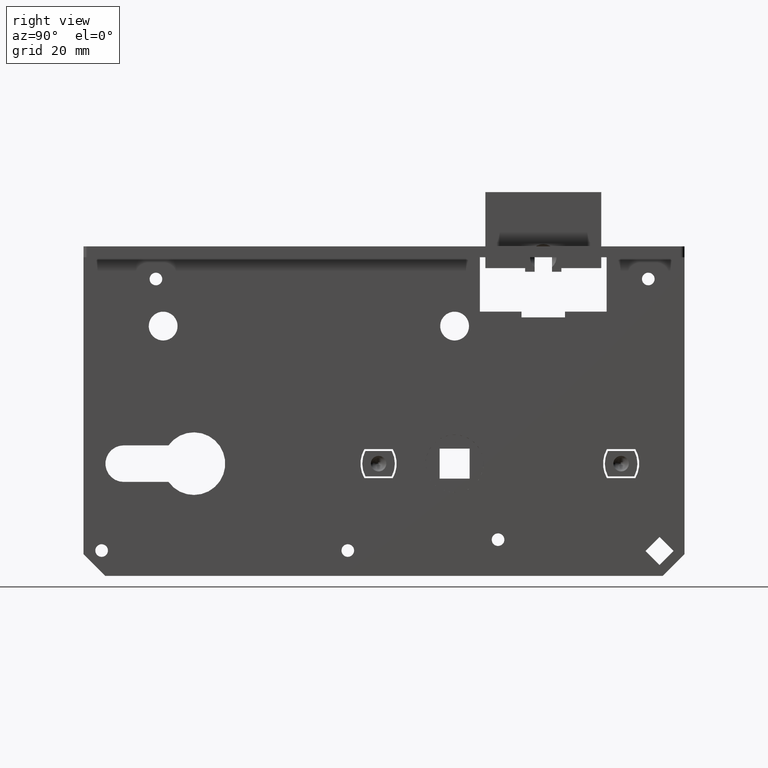
[diagram: clean part render]
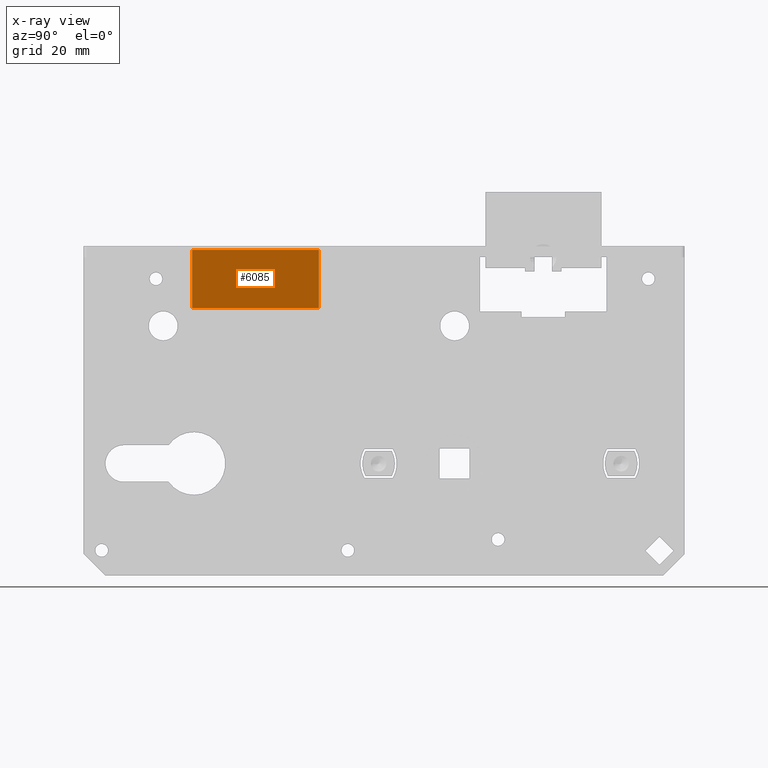
[diagram: x-ray — body ghosted, one internal face saturated and labeled with its STEP entity id]
A machine part, right view, then the same camera in x-ray: the body is ghosted and one INTERNAL B-rep face — a face not visible from any outside direction — is saturated and labeled: STEP entity #6085.
In plain terms, the highlighted planar face has unit normal (-1, -0, 0).
Its self-contained STEP definition (entity closure, byte-faithful):
#580 = CARTESIAN_POINT ( 'NONE',  ( 4.074999999999999289, 17.50000000000000000, 7.500000000000000888 ) ) ;
#1476 = CARTESIAN_POINT ( 'NONE',  ( 4.074999999999999289, 17.50000000000000000, 7.500000000000000888 ) ) ;
#1630 = CARTESIAN_POINT ( 'NONE',  ( 4.074999999999999289, 17.50000000000000000, -8.500000000000000000 ) ) ;
#2378 = LINE ( 'NONE', #1630, #13865 ) ;
#3158 = CARTESIAN_POINT ( 'NONE',  ( 4.074999999999999289, 17.50000000000000000, 8.500000000000000000 ) ) ;
#3161 = AXIS2_PLACEMENT_3D ( 'NONE', #3158, #16866, #7738 ) ;
#4436 = B_SPLINE_CURVE_WITH_KNOTS ( 'NONE', 3,
 ( #580, #19022, #15867, #6669 ),
 .UNSPECIFIED., .F., .F.,
 ( 4, 4 ),
 ( 0.000000000000000000, 1.000000000000000000 ),
 .UNSPECIFIED. ) ;
#4459 = CARTESIAN_POINT ( 'NONE',  ( 4.074999999999999289, 17.50000000000000000, -8.500000000000000000 ) ) ;
#5176 = ORIENTED_EDGE ( 'NONE', *, *, #8546, .T. ) ;
#5528 = VERTEX_POINT ( 'NONE', #4459 ) ;
#5757 = EDGE_CURVE ( 'NONE', #6634, #11662, #4436, .T. ) ;
#6085 = ADVANCED_FACE ( 'NONE', ( #7485 ), #10632, .F. ) ;
#6471 = EDGE_CURVE ( 'NONE', #6634, #5528, #16988, .T. ) ;
#6634 = VERTEX_POINT ( 'NONE', #1476 ) ;
#6669 = CARTESIAN_POINT ( 'NONE',  ( 4.075000000000004619, -17.50000000000000000, 7.500000000000000888 ) ) ;
#7485 = FACE_OUTER_BOUND ( 'NONE', #14430, .T. ) ;
#7738 = DIRECTION ( 'NONE',  ( 1.486905836551548832E-16, -1.000000000000000000, 0.000000000000000000 ) ) ;
#8190 = EDGE_CURVE ( 'NONE', #11662, #13616, #10281, .T. ) ;
#8248 = DIRECTION ( 'NONE',  ( -0.000000000000000000, -0.000000000000000000, -1.000000000000000000 ) ) ;
#8546 = EDGE_CURVE ( 'NONE', #13616, #5528, #2378, .T. ) ;
#10281 = LINE ( 'NONE', #11247, #14361 ) ;
#10632 = PLANE ( 'NONE',  #3161 ) ;
#10859 = ORIENTED_EDGE ( 'NONE', *, *, #5757, .T. ) ;
#11247 = CARTESIAN_POINT ( 'NONE',  ( 4.075000000000004619, -17.50000000000000000, 8.500000000000000000 ) ) ;
#11662 = VERTEX_POINT ( 'NONE', #15572 ) ;
#12441 = DIRECTION ( 'NONE',  ( -1.486905836551548832E-16, 1.000000000000000000, -0.000000000000000000 ) ) ;
#12552 = CARTESIAN_POINT ( 'NONE',  ( 4.075000000000004619, -17.50000000000000000, -8.500000000000000000 ) ) ;
#13616 = VERTEX_POINT ( 'NONE', #12552 ) ;
#13865 = VECTOR ( 'NONE', #12441, 1000.000000000000000 ) ;
#13888 = ORIENTED_EDGE ( 'NONE', *, *, #6471, .F. ) ;
#14361 = VECTOR ( 'NONE', #14604, 1000.000000000000000 ) ;
#14430 = EDGE_LOOP ( 'NONE', ( #13888, #10859, #18329, #5176 ) ) ;
#14604 = DIRECTION ( 'NONE',  ( -0.000000000000000000, -0.000000000000000000, -1.000000000000000000 ) ) ;
#14891 = VECTOR ( 'NONE', #8248, 1000.000000000000000 ) ;
#15572 = CARTESIAN_POINT ( 'NONE',  ( 4.075000000000004619, -17.50000000000000000, 7.500000000000000888 ) ) ;
#15849 = CARTESIAN_POINT ( 'NONE',  ( 4.074999999999999289, 17.50000000000000000, 8.500000000000000000 ) ) ;
#15867 = CARTESIAN_POINT ( 'NONE',  ( 4.075000000000002842, -5.833333333333334814, 7.500000000000000888 ) ) ;
#16866 = DIRECTION ( 'NONE',  ( -1.000000000000000000, -1.486905836551548832E-16, 0.000000000000000000 ) ) ;
#16988 = LINE ( 'NONE', #15849, #14891 ) ;
#18329 = ORIENTED_EDGE ( 'NONE', *, *, #8190, .T. ) ;
#19022 = CARTESIAN_POINT ( 'NONE',  ( 4.075000000000001066, 5.833333333333334814, 7.500000000000000888 ) ) ;